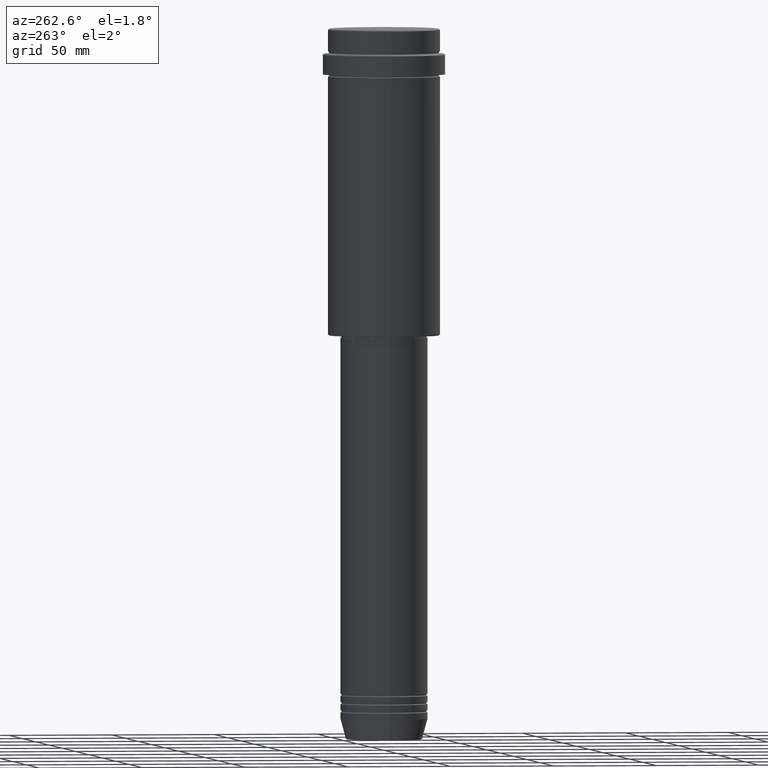
[diagram: clean part render]
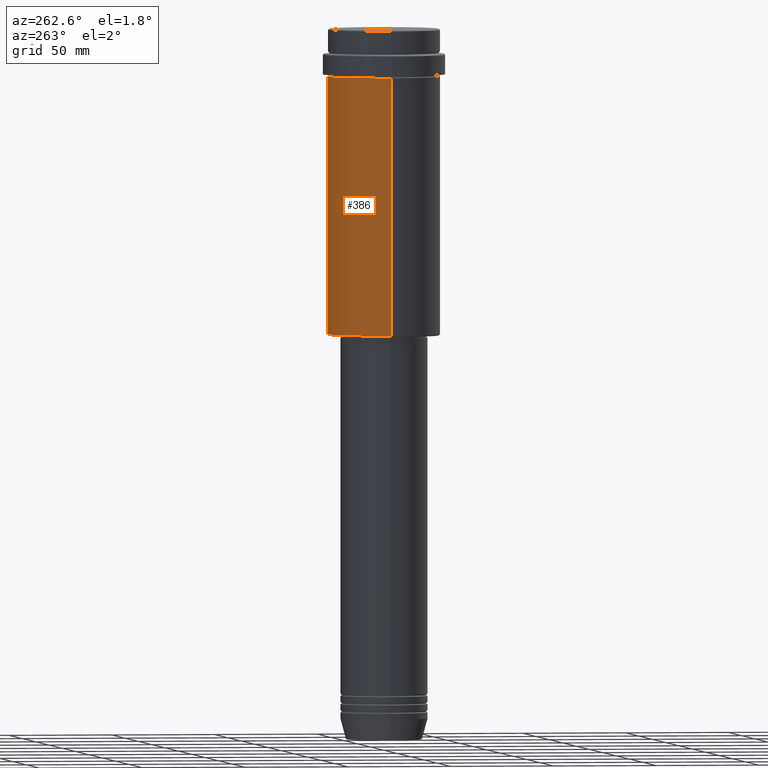
[diagram: same view with one face highlighted and labeled with its STEP entity id]
A machine part, auxiliary view. The second image highlights one B-rep face of the part: STEP entity #386.
In plain terms, the highlighted cylindrical surface (partial cylindrical patch) has radius 27 mm, axis along (-0, -0, 1).
Its self-contained STEP definition (entity closure, byte-faithful):
#73 = CARTESIAN_POINT ( 'NONE',  ( -27.00000000000000355, 3.306546357697854128E-15, -147.5000000000000284 ) ) ;
#159 = FACE_OUTER_BOUND ( 'NONE', #821, .T. ) ;
#172 = CIRCLE ( 'NONE', #526, 27.00000000000000355 ) ;
#231 = ORIENTED_EDGE ( 'NONE', *, *, #1386, .F. ) ;
#283 = VERTEX_POINT ( 'NONE', #73 ) ;
#300 = VERTEX_POINT ( 'NONE', #754 ) ;
#316 = CARTESIAN_POINT ( 'NONE',  ( 27.00000000000000355, 0.000000000000000000, 0.000000000000000000 ) ) ;
#351 = CARTESIAN_POINT ( 'NONE',  ( 0.000000000000000000, 0.000000000000000000, -23.00000000000001421 ) ) ;
#386 = ADVANCED_FACE ( 'NONE', ( #159 ), #551, .T. ) ;
#475 = ORIENTED_EDGE ( 'NONE', *, *, #696, .F. ) ;
#482 = AXIS2_PLACEMENT_3D ( 'NONE', #582, #1000, #1015 ) ;
#505 = CARTESIAN_POINT ( 'NONE',  ( 0.000000000000000000, 0.000000000000000000, -147.5000000000000284 ) ) ;
#526 = AXIS2_PLACEMENT_3D ( 'NONE', #351, #789, #1122 ) ;
#551 = CYLINDRICAL_SURFACE ( 'NONE', #482, 27.00000000000000355 ) ;
#582 = CARTESIAN_POINT ( 'NONE',  ( 0.000000000000000000, 0.000000000000000000, 0.000000000000000000 ) ) ;
#611 = DIRECTION ( 'NONE',  ( -0.000000000000000000, -0.000000000000000000, 1.000000000000000000 ) ) ;
#655 = ORIENTED_EDGE ( 'NONE', *, *, #802, .T. ) ;
#696 = EDGE_CURVE ( 'NONE', #882, #300, #172, .T. ) ;
#711 = AXIS2_PLACEMENT_3D ( 'NONE', #505, #1369, #1260 ) ;
#741 = EDGE_CURVE ( 'NONE', #1074, #283, #874, .T. ) ;
#754 = CARTESIAN_POINT ( 'NONE',  ( -27.00000000000000355, 3.306546357697854128E-15, -23.00000000000001421 ) ) ;
#756 = CARTESIAN_POINT ( 'NONE',  ( 27.00000000000000355, 0.000000000000000000, -23.00000000000001421 ) ) ;
#771 = CARTESIAN_POINT ( 'NONE',  ( 27.00000000000000355, 0.000000000000000000, -147.5000000000000284 ) ) ;
#789 = DIRECTION ( 'NONE',  ( -0.000000000000000000, -0.000000000000000000, 1.000000000000000000 ) ) ;
#802 = EDGE_CURVE ( 'NONE', #283, #300, #1387, .T. ) ;
#821 = EDGE_LOOP ( 'NONE', ( #1177, #655, #475, #231 ) ) ;
#874 = CIRCLE ( 'NONE', #711, 27.00000000000000355 ) ;
#882 = VERTEX_POINT ( 'NONE', #756 ) ;
#1000 = DIRECTION ( 'NONE',  ( -0.000000000000000000, -0.000000000000000000, 1.000000000000000000 ) ) ;
#1015 = DIRECTION ( 'NONE',  ( 1.000000000000000000, 0.000000000000000000, 0.000000000000000000 ) ) ;
#1051 = CARTESIAN_POINT ( 'NONE',  ( -27.00000000000000355, 3.306546357697854128E-15, 0.000000000000000000 ) ) ;
#1074 = VERTEX_POINT ( 'NONE', #771 ) ;
#1108 = VECTOR ( 'NONE', #1195, 1000.000000000000000 ) ;
#1122 = DIRECTION ( 'NONE',  ( 1.000000000000000000, 0.000000000000000000, 0.000000000000000000 ) ) ;
#1150 = VECTOR ( 'NONE', #611, 1000.000000000000000 ) ;
#1177 = ORIENTED_EDGE ( 'NONE', *, *, #741, .T. ) ;
#1195 = DIRECTION ( 'NONE',  ( -0.000000000000000000, -0.000000000000000000, 1.000000000000000000 ) ) ;
#1260 = DIRECTION ( 'NONE',  ( -1.000000000000000000, 0.000000000000000000, 0.000000000000000000 ) ) ;
#1296 = LINE ( 'NONE', #316, #1108 ) ;
#1369 = DIRECTION ( 'NONE',  ( -0.000000000000000000, -0.000000000000000000, 1.000000000000000000 ) ) ;
#1386 = EDGE_CURVE ( 'NONE', #1074, #882, #1296, .T. ) ;
#1387 = LINE ( 'NONE', #1051, #1150 ) ;